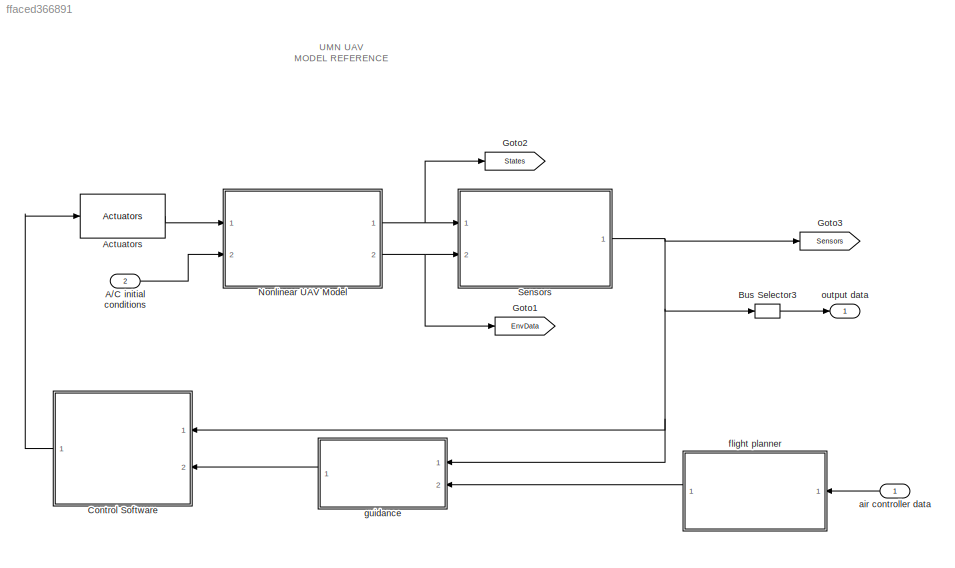
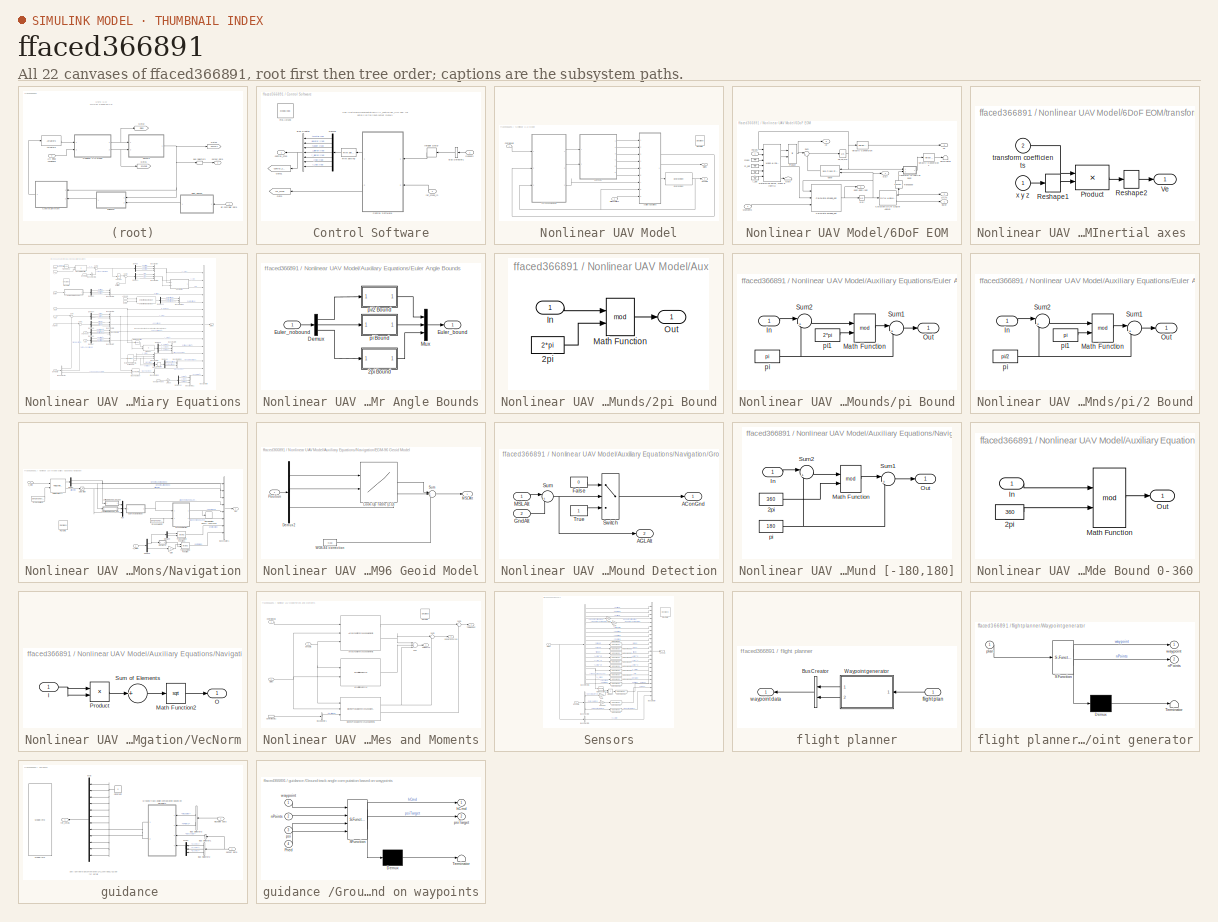
[diagram: thumbnail index - all 22 canvases of the model, root first then tree order]
MODEL slx_ffaced366891
KIND model
BLOCK [Inport] A//C initial conditions
  IconDisplay = Port number
  Port = 2
BLOCK [Reference] Actuators  REF=Actuator_Lib/Actuators
  Ports = [1, 1]
  SourceBlock = Actuator_Lib/Actuators
  SourceType = SubSystem
BLOCK [BusSelector] Bus Selector3
  OutputAsBus = on
  OutputSignals = Geodetic Latitude [rad],Geodetic Longitude [rad],Altitude [m],h [m],X_e [m]
  Ports = [1, 1]
BLOCK [SubSystem] Control Software
  FunctionWithSeparateData = off
  MaskHideContents = off
  MinAlgLoopOccurrences = off
  Opaque = off
  Ports = [2, 1]
  PropExecContextOutsideSubsystem = off
  RTWSystemCode = Auto
  RequestExecContextInheritance = off
BLOCK [BusCreator] Control Software/Bus Creator
  DisplayOption = bar
  Inputs = 7
  Ports = [7, 1]
BLOCK [BusSelector] Control Software/Bus Selector1
  OutputAsBus = on
  OutputSignals = phi [rad],theta [rad],psi [rad],p [rad/s],q [rad/s],r [rad/s],Ax [m/s^2],Ay [m/s^2],Az [m/s^2],h [m],V_s [m/s],alpha [rad],beta [rad],Geodetic Latitude [rad],Geodetic Longitude [rad],Altitude [m],Xdot [m/s],Ydot [m/s],Zdot [m/s]
  Ports = [1, 1]
BLOCK [ModelReference] Control Software/Control Software
  CopyOfModelName = baseline_alt_vel_control
  DefaultDataLogging = off
  ModelNameDialog = baseline_alt_vel_control
  ModelReferenceVersion = 1.189
  Ports = [2, 2]
  Variant = on
BLOCK [Demux] Control Software/Demux
  DisplayOption = bar
  Outputs = 7
  Ports = [1, 7]
BLOCK [Goto] Control Software/Goto
  GotoTag = ref_cmds
  TagVisibility = global
BLOCK [Goto] Control Software/Goto1
  GotoTag = control_cmds
  TagVisibility = global
BLOCK [Delay] Control Software/Integer Delay
  DelayLength = IntegerTimeDelay
  InitialCondition = repmat([TrimCondition.AttitudeIni;TrimCondition.RatesIni;TrimCondition.AccelsIni;OperatingPoint.op_report.Outputs(4).y;TrimCondition.WindAxesIni;TrimCondition.LLIni;0; zeros(3,1)],[1,IntegerTimeDelay])
  InputPortMap = u0
  InputProcessing = Inherited
  Ports = [1, 1]
BLOCK [Reference] Control Software/README  REF=simulink/Model-Wide
Utilities/DocBlock
  DocumentType = Text
  Ports = []
  SourceBlock = simulink/Model-Wide\nUtilities/DocBlock
  SourceType = DocBlock
  UserDataPersistent = on
BLOCK [Inport] Control Software/Sensors
  IconDisplay = Port number
BLOCK [Reference] Control Software/Trim setting   REF=Actuator_Lib/Trim setting 
  Ports = [1, 1]
  SourceBlock = Actuator_Lib/Trim setting
  SourceType = SubSystem
BLOCK [Outport] Control Software/control_cmd
  IconDisplay = Port number
BLOCK [Inport] Control Software/ref_cmds_in
  IconDisplay = Port number
  Port = 2
BLOCK [Goto] Goto1
  GotoTag = EnvData
  TagVisibility = global
BLOCK [Goto] Goto2
  GotoTag = States
  TagVisibility = global
BLOCK [Goto] Goto3
  GotoTag = Sensors
  TagVisibility = global
BLOCK [SubSystem] Nonlinear UAV Model
  AncestorBlock = NonlinearModel_Lib/Nonlinear UAV Model
  FunctionWithSeparateData = off
  MaskHideContents = off
  MinAlgLoopOccurrences = off
  Opaque = off
  Ports = [2, 2]
  PropExecContextOutsideSubsystem = off
  RTWSystemCode = Auto
  RequestExecContextInheritance = off
BLOCK [SubSystem] Nonlinear UAV Model/6DoF EOM
  FunctionWithSeparateData = off
  MaskHideContents = off
  MinAlgLoopOccurrences = off
  Opaque = off
  Ports = [2, 6]
  PropExecContextOutsideSubsystem = off
  RTWSystemCode = Auto
  RequestExecContextInheritance = off
BLOCK [Outport] Nonlinear UAV Model/6DoF EOM/Ab
  IconDisplay = Port number
  Port = 6
BLOCK [Reference] Nonlinear UAV Model/6DoF EOM/Calculate DCM & Euler Angles  REF=aerolib6dofsys/DCM & Euler Angles (Euler)
  FunctionWithSeparateData = off
  GeneratePreprocessorConditionals = off
  Ports = [1, 2]
  ShowPortLabels = FromPortIcon
  SourceBlock = aerolib6dofsys/DCM & Euler Angles (Euler)
  SourceType = DCM & Euler Angles (Euler)
  SystemSampleTime = -1
BLOCK [Reference] Nonlinear UAV Model/6DoF EOM/Calculate omega_dot  REF=aerolib6dofsys/Calculate omega_dot
  Ports = [3, 1]
  SourceBlock = aerolib6dofsys/Calculate omega_dot
  SourceType = SubSystem
BLOCK [Outport] Nonlinear UAV Model/6DoF EOM/DCM
  IconDisplay = Port number
  Port = 2
BLOCK [Reference] Nonlinear UAV Model/6DoF EOM/Determine Force, Mass & Inertia  REF=aerolib6dofsys/Mass & Inertia (fixed)
  FunctionWithSeparateData = off
  GeneratePreprocessorConditionals = off
  Ports = [6, 4]
  ShowPortLabels = FromPortIcon
  SourceBlock = aerolib6dofsys/Mass & Inertia (fixed)
  SourceType = Mass & Inertia (fixed)
  SystemSampleTime = -1
BLOCK [Outport] Nonlinear UAV Model/6DoF EOM/Euler
  IconDisplay = Port number
BLOCK [Inport] Nonlinear UAV Model/6DoF EOM/Forces
  IconDisplay = Port number
BLOCK [Ground] Nonlinear UAV Model/6DoF EOM/I
BLOCK [Ground] Nonlinear UAV Model/6DoF EOM/I_dot
BLOCK [Inport] Nonlinear UAV Model/6DoF EOM/Moments
  IconDisplay = Port number
  Port = 2
BLOCK [Terminator] Nonlinear UAV Model/6DoF EOM/Out9
BLOCK [Product] Nonlinear UAV Model/6DoF EOM/Product
  InputSameDT = off
  Inputs = */
  Ports = [2, 1]
  RndMeth = Floor
BLOCK [Sum] Nonlinear UAV Model/6DoF EOM/Sum
  IconShape = round
  InputSameDT = off
  Inputs = |++
  OutDataTypeStr = Inherit: Inherit via internal rule
  Ports = [2, 1]
BLOCK [Terminator] Nonlinear UAV Model/6DoF EOM/Terminator
BLOCK [Math] Nonlinear UAV Model/6DoF EOM/Transpose
  Operator = transpose
  Ports = [1, 1]
BLOCK [Outport] Nonlinear UAV Model/6DoF EOM/Vb
  IconDisplay = Port number
  Port = 3
BLOCK [Reference] Nonlinear UAV Model/6DoF EOM/Vbxw  REF=aerolibutil/3x3 Cross Product
  Ports = [2, 1]
  SourceBlock = aerolibutil/3x3 Cross Product
  SourceType = CrossProduct
BLOCK [Reference] Nonlinear UAV Model/6DoF EOM/Velocity Conversion  REF=aerolibconvert2/Velocity Conversion
  IU = m/s
  OU = m/s
  Ports = [1, 1]
  SourceBlock = aerolibconvert2/Velocity Conversion
  SourceType = Velocity Conversion
BLOCK [Reference] Nonlinear UAV Model/6DoF EOM/Velocity Conversion1  REF=aerolibconvert2/Velocity Conversion
  IU = m/s
  OU = m/s
  Ports = [1, 1]
  SourceBlock = aerolibconvert2/Velocity Conversion
  SourceType = Velocity Conversion
BLOCK [Ground] Nonlinear UAV Model/6DoF EOM/m_dot
BLOCK [Ground] Nonlinear UAV Model/6DoF EOM/mass
BLOCK [Outport] Nonlinear UAV Model/6DoF EOM/p,q,r
  IconDisplay = Port number
  Port = 4
BLOCK [Integrator] Nonlinear UAV Model/6DoF EOM/p,q,r 
  InitialCondition = pm_0
  Ports = [1, 1]
BLOCK [Outport] Nonlinear UAV Model/6DoF EOM/pdot,qdot,rdot
  IconDisplay = Port number
  Port = 5
BLOCK [SubSystem] Nonlinear UAV Model/6DoF EOM/transform to Inertial axes 
  FunctionWithSeparateData = off
  MaskHideContents = off
  MinAlgLoopOccurrences = off
  Opaque = off
  Ports = [2, 1]
  PropExecContextOutsideSubsystem = off
  RTWSystemCode = Auto
  RequestExecContextInheritance = off
  ShowPortLabels = none
BLOCK [Product] Nonlinear UAV Model/6DoF EOM/transform to Inertial axes /Product
  Multiplication = Matrix(*)
  Ports = [2, 1]
  RndMeth = Floor
BLOCK [Reshape] Nonlinear UAV Model/6DoF EOM/transform to Inertial axes /Reshape1
  OutputDimensionality = Column vector (2-D)
  Ports = [1, 1]
BLOCK [Reshape] Nonlinear UAV Model/6DoF EOM/transform to Inertial axes /Reshape2
  Ports = [1, 1]
BLOCK [Outport] Nonlinear UAV Model/6DoF EOM/transform to Inertial axes /Ve
  IconDisplay = Port number
BLOCK [Inport] Nonlinear UAV Model/6DoF EOM/transform to Inertial axes /transform coefficients
  IconDisplay = Port number
  Port = 2
BLOCK [Inport] Nonlinear UAV Model/6DoF EOM/transform to Inertial axes /x y z
  IconDisplay = Port number
BLOCK [Integrator] Nonlinear UAV Model/6DoF EOM/ub,vb,wb
  InitialCondition = convvel(Vm_0,'m/s','m/s')
  Ports = [1, 1]
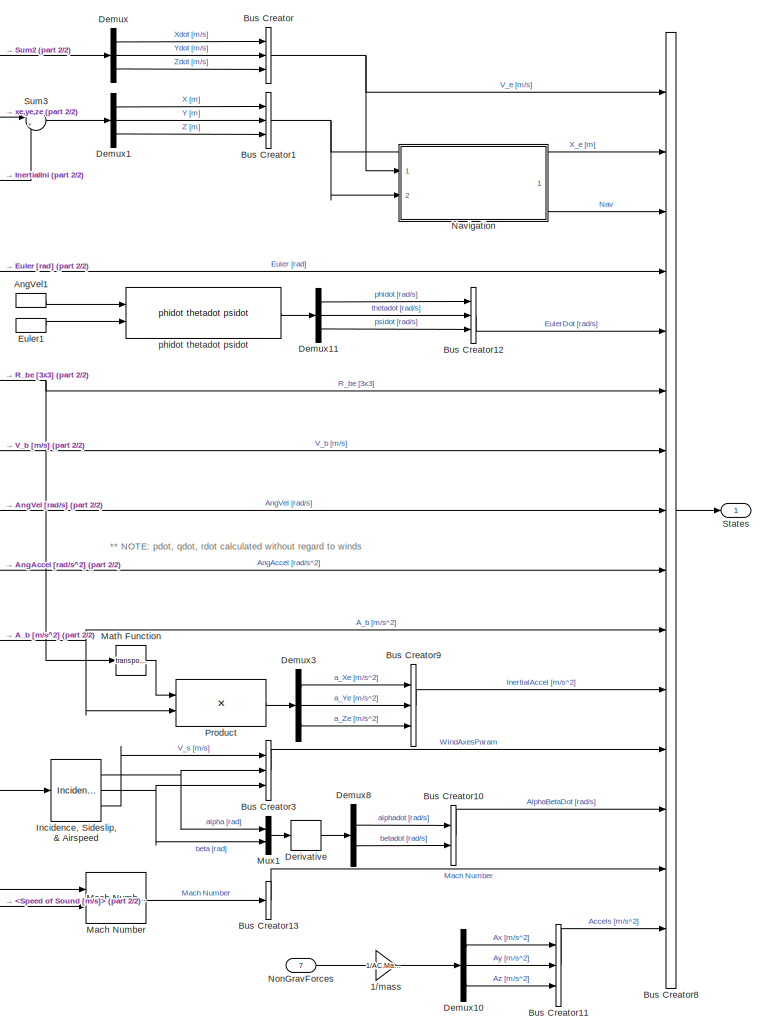
[diagram: Nonlinear UAV Model/Auxiliary Equations - part 1/2, right side, full height]
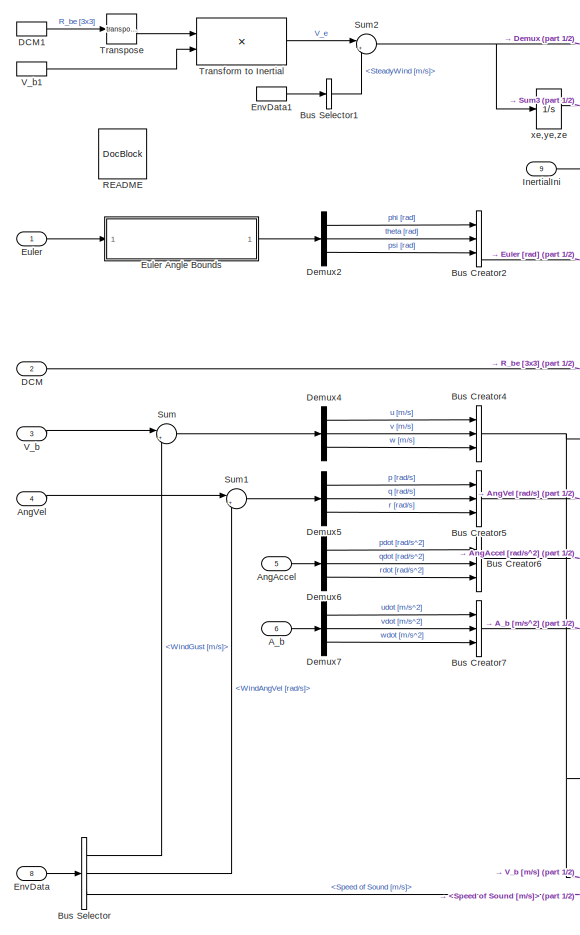
[diagram: Nonlinear UAV Model/Auxiliary Equations - part 2/2, left side, full height]
BLOCK [SubSystem] Nonlinear UAV Model/Auxiliary Equations
  AncestorBlock = AuxEq_Lib/Auxiliary Equations
  FunctionWithSeparateData = off
  MaskHideContents = off
  MinAlgLoopOccurrences = off
  Opaque = off
  Ports = [9, 1]
  PropExecContextOutsideSubsystem = off
  RTWSystemCode = Auto
  RequestExecContextInheritance = off
BLOCK [Gain] Nonlinear UAV Model/Auxiliary Equations/1//mass
  Gain = 1/AC.Mass
  OutDataTypeStr = Inherit: Inherit via internal rule
  ParamDataTypeStr = Inherit: Inherit via internal rule
  SaturateOnIntegerOverflow = off
BLOCK [Inport] Nonlinear UAV Model/Auxiliary Equations/A_b
  IconDisplay = Port number
  Port = 6
BLOCK [Inport] Nonlinear UAV Model/Auxiliary Equations/AngAccel
  IconDisplay = Port number
  Port = 5
BLOCK [Inport] Nonlinear UAV Model/Auxiliary Equations/AngVel
  IconDisplay = Port number
  Port = 4
BLOCK [InportShadow] Nonlinear UAV Model/Auxiliary Equations/AngVel1
  IconDisplay = Port number
  LatchByDelayingOutsideSignal = off
  LatchInputForFeedbackSignals = off
  Port = 4
BLOCK [BusCreator] Nonlinear UAV Model/Auxiliary Equations/Bus Creator
  DisplayOption = bar
  Inputs = 3
  Ports = [3, 1]
BLOCK [BusCreator] Nonlinear UAV Model/Auxiliary Equations/Bus Creator1
  DisplayOption = bar
  Inputs = 3
  Ports = [3, 1]
BLOCK [BusCreator] Nonlinear UAV Model/Auxiliary Equations/Bus Creator10
  DisplayOption = bar
  Inputs = 2
  Ports = [2, 1]
BLOCK [BusCreator] Nonlinear UAV Model/Auxiliary Equations/Bus Creator11
  DisplayOption = bar
  Inputs = 3
  Ports = [3, 1]
BLOCK [BusCreator] Nonlinear UAV Model/Auxiliary Equations/Bus Creator12
  DisplayOption = bar
  Inputs = 3
  Ports = [3, 1]
BLOCK [BusCreator] Nonlinear UAV Model/Auxiliary Equations/Bus Creator13
  DisplayOption = bar
  Inputs = 1
  Ports = [1, 1]
BLOCK [BusCreator] Nonlinear UAV Model/Auxiliary Equations/Bus Creator2
  DisplayOption = bar
  Inputs = 3
  Ports = [3, 1]
BLOCK [BusCreator] Nonlinear UAV Model/Auxiliary Equations/Bus Creator3
  DisplayOption = bar
  Inputs = 3
  Ports = [3, 1]
BLOCK [BusCreator] Nonlinear UAV Model/Auxiliary Equations/Bus Creator4
  DisplayOption = bar
  Inputs = 3
  Ports = [3, 1]
BLOCK [BusCreator] Nonlinear UAV Model/Auxiliary Equations/Bus Creator5
  DisplayOption = bar
  Inputs = 3
  Ports = [3, 1]
BLOCK [BusCreator] Nonlinear UAV Model/Auxiliary Equations/Bus Creator6
  DisplayOption = bar
  Inputs = 3
  Ports = [3, 1]
BLOCK [BusCreator] Nonlinear UAV Model/Auxiliary Equations/Bus Creator7
  DisplayOption = bar
  Inputs = 3
  Ports = [3, 1]
BLOCK [BusCreator] Nonlinear UAV Model/Auxiliary Equations/Bus Creator8
  DisplayOption = bar
  Inputs = 15
  Ports = [15, 1]
BLOCK [BusCreator] Nonlinear UAV Model/Auxiliary Equations/Bus Creator9
  DisplayOption = bar
  Inputs = 3
  Ports = [3, 1]
BLOCK [BusSelector] Nonlinear UAV Model/Auxiliary Equations/Bus Selector
  OutputSignals = WindGust [m/s],WindAngVel [rad/s],Speed of Sound [m/s]
  Ports = [1, 3]
BLOCK [BusSelector] Nonlinear UAV Model/Auxiliary Equations/Bus Selector1
  OutputSignals = SteadyWind [m/s]
  Ports = [1, 1]
BLOCK [Inport] Nonlinear UAV Model/Auxiliary Equations/DCM
  IconDisplay = Port number
  Port = 2
BLOCK [InportShadow] Nonlinear UAV Model/Auxiliary Equations/DCM1
  IconDisplay = Port number
  LatchByDelayingOutsideSignal = off
  LatchInputForFeedbackSignals = off
  Port = 2
BLOCK [Demux] Nonlinear UAV Model/Auxiliary Equations/Demux
  DisplayOption = bar
  Outputs = 3
  Ports = [1, 3]
BLOCK [Demux] Nonlinear UAV Model/Auxiliary Equations/Demux1
  DisplayOption = bar
  Outputs = 3
  Ports = [1, 3]
BLOCK [Demux] Nonlinear UAV Model/Auxiliary Equations/Demux10
  DisplayOption = bar
  Outputs = 3
  Ports = [1, 3]
BLOCK [Demux] Nonlinear UAV Model/Auxiliary Equations/Demux11
  DisplayOption = bar
  Outputs = 3
  Ports = [1, 3]
BLOCK [Demux] Nonlinear UAV Model/Auxiliary Equations/Demux2
  DisplayOption = bar
  Outputs = 3
  Ports = [1, 3]
BLOCK [Demux] Nonlinear UAV Model/Auxiliary Equations/Demux3
  DisplayOption = bar
  Outputs = 3
  Ports = [1, 3]
BLOCK [Demux] Nonlinear UAV Model/Auxiliary Equations/Demux4
  DisplayOption = bar
  Outputs = 3
  Ports = [1, 3]
BLOCK [Demux] Nonlinear UAV Model/Auxiliary Equations/Demux5
  DisplayOption = bar
  Outputs = 3
  Ports = [1, 3]
BLOCK [Demux] Nonlinear UAV Model/Auxiliary Equations/Demux6
  DisplayOption = bar
  Outputs = 3
  Ports = [1, 3]
BLOCK [Demux] Nonlinear UAV Model/Auxiliary Equations/Demux7
  DisplayOption = bar
  Outputs = 3
  Ports = [1, 3]
BLOCK [Demux] Nonlinear UAV Model/Auxiliary Equations/Demux8
  Outputs = 2
  Ports = [1, 2]
BLOCK [Derivative] Nonlinear UAV Model/Auxiliary Equations/Derivative
BLOCK [Inport] Nonlinear UAV Model/Auxiliary Equations/EnvData
  IconDisplay = Port number
  Port = 8
BLOCK [InportShadow] Nonlinear UAV Model/Auxiliary Equations/EnvData1
  IconDisplay = Port number
  LatchByDelayingOutsideSignal = off
  LatchInputForFeedbackSignals = off
  Port = 8
BLOCK [Inport] Nonlinear UAV Model/Auxiliary Equations/Euler
  IconDisplay = Port number
BLOCK [SubSystem] Nonlinear UAV Model/Auxiliary Equations/Euler Angle Bounds
  FunctionWithSeparateData = off
  MaskHideContents = off
  MinAlgLoopOccurrences = off
  Opaque = off
  Ports = [1, 1]
  PropExecContextOutsideSubsystem = off
  RTWSystemCode = Auto
  RequestExecContextInheritance = off
BLOCK [SubSystem] Nonlinear UAV Model/Auxiliary Equations/Euler Angle Bounds/2pi Bound
  FunctionWithSeparateData = off
  MaskHideContents = off
  MinAlgLoopOccurrences = off
  Opaque = off
  Ports = [1, 1]
  PropExecContextOutsideSubsystem = off
  RTWSystemCode = Auto
  RequestExecContextInheritance = off
BLOCK [Constant] Nonlinear UAV Model/Auxiliary Equations/Euler Angle Bounds/2pi Bound/2pi
  Value = 2*pi
BLOCK [Inport] Nonlinear UAV Model/Auxiliary Equations/Euler Angle Bounds/2pi Bound/In
  IconDisplay = Port number
BLOCK [Math] Nonlinear UAV Model/Auxiliary Equations/Euler Angle Bounds/2pi Bound/Math Function
  Operator = mod
  Ports = [2, 1]
BLOCK [Outport] Nonlinear UAV Model/Auxiliary Equations/Euler Angle Bounds/2pi Bound/Out
  IconDisplay = Port number
BLOCK [Demux] Nonlinear UAV Model/Auxiliary Equations/Euler Angle Bounds/Demux
  DisplayOption = bar
  Outputs = 3
  Ports = [1, 3]
BLOCK [Outport] Nonlinear UAV Model/Auxiliary Equations/Euler Angle Bounds/Euler_bound
  IconDisplay = Port number
BLOCK [Inport] Nonlinear UAV Model/Auxiliary Equations/Euler Angle Bounds/Euler_nobound
  IconDisplay = Port number
BLOCK [Mux] Nonlinear UAV Model/Auxiliary Equations/Euler Angle Bounds/Mux
  DisplayOption = bar
  Inputs = 3
  Ports = [3, 1]
BLOCK [SubSystem] Nonlinear UAV Model/Auxiliary Equations/Euler Angle Bounds/pi Bound
  FunctionWithSeparateData = off
  MaskHideContents = off
  MinAlgLoopOccurrences = off
  Opaque = off
  Ports = [1, 1]
  PropExecContextOutsideSubsystem = off
  RTWSystemCode = Auto
  RequestExecContextInheritance = off
BLOCK [Inport] Nonlinear UAV Model/Auxiliary Equations/Euler Angle Bounds/pi Bound/In
  IconDisplay = Port number
BLOCK [Math] Nonlinear UAV Model/Auxiliary Equations/Euler Angle Bounds/pi Bound/Math Function
  Operator = mod
  Ports = [2, 1]
BLOCK [Outport] Nonlinear UAV Model/Auxiliary Equations/Euler Angle Bounds/pi Bound/Out
  IconDisplay = Port number
BLOCK [Sum] Nonlinear UAV Model/Auxiliary Equations/Euler Angle Bounds/pi Bound/Sum1
  IconShape = round
  Inputs = |+-
  Ports = [2, 1]
BLOCK [Sum] Nonlinear UAV Model/Auxiliary Equations/Euler Angle Bounds/pi Bound/Sum2
  IconShape = round
  Inputs = |++
  Ports = [2, 1]
BLOCK [Constant] Nonlinear UAV Model/Auxiliary Equations/Euler Angle Bounds/pi Bound/pi
  Value = pi
BLOCK [Constant] Nonlinear UAV Model/Auxiliary Equations/Euler Angle Bounds/pi Bound/pi1
  Value = 2*pi
BLOCK [SubSystem] Nonlinear UAV Model/Auxiliary Equations/Euler Angle Bounds/pi//2 Bound
  FunctionWithSeparateData = off
  MaskHideContents = off
  MinAlgLoopOccurrences = off
  Opaque = off
  Ports = [1, 1]
  PropExecContextOutsideSubsystem = off
  RTWSystemCode = Auto
  RequestExecContextInheritance = off
BLOCK [Inport] Nonlinear UAV Model/Auxiliary Equations/Euler Angle Bounds/pi//2 Bound/In
  IconDisplay = Port number
BLOCK [Math] Nonlinear UAV Model/Auxiliary Equations/Euler Angle Bounds/pi//2 Bound/Math Function
  Operator = mod
  Ports = [2, 1]
BLOCK [Outport] Nonlinear UAV Model/Auxiliary Equations/Euler Angle Bounds/pi//2 Bound/Out
  IconDisplay = Port number
BLOCK [Sum] Nonlinear UAV Model/Auxiliary Equations/Euler Angle Bounds/pi//2 Bound/Sum1
  IconShape = round
  Inputs = |+-
  Ports = [2, 1]
BLOCK [Sum] Nonlinear UAV Model/Auxiliary Equations/Euler Angle Bounds/pi//2 Bound/Sum2
  IconShape = round
  Inputs = |++
  Ports = [2, 1]
BLOCK [Constant] Nonlinear UAV Model/Auxiliary Equations/Euler Angle Bounds/pi//2 Bound/pi
  Value = pi/2
BLOCK [Constant] Nonlinear UAV Model/Auxiliary Equations/Euler Angle Bounds/pi//2 Bound/pi1
  Value = pi
BLOCK [InportShadow] Nonlinear UAV Model/Auxiliary Equations/Euler1
  IconDisplay = Port number
  LatchByDelayingOutsideSignal = off
  LatchInputForFeedbackSignals = off
BLOCK [Reference] Nonlinear UAV Model/Auxiliary Equations/Incidence, Sideslip, & Airspeed  REF=aerolibasang/Incidence, Sideslip,
& Airspeed
  Ports = [1, 3]
  SourceBlock = aerolibasang/Incidence, Sideslip,\n& Airspeed
  SourceType = Incidence,Sideslip,&Airspeed
BLOCK [Inport] Nonlinear UAV Model/Auxiliary Equations/InertialIni
  IconDisplay = Port number
  Port = 9
BLOCK [Reference] Nonlinear UAV Model/Auxiliary Equations/Mach Number  REF=aerolibasang/Mach Number
  Ports = [2, 1]
  SourceBlock = aerolibasang/Mach Number
  SourceType = Mach Number
BLOCK [Math] Nonlinear UAV Model/Auxiliary Equations/Math Function
  Operator = transpose
  Ports = [1, 1]
BLOCK [Mux] Nonlinear UAV Model/Auxiliary Equations/Mux1
  DisplayOption = bar
  Inputs = 2
  Ports = [2, 1]
BLOCK [SubSystem] Nonlinear UAV Model/Auxiliary Equations/Navigation
  AncestorBlock = Navigation_Lib/Navigation
  Description = This model produces the followng navigation data for the UAV flight:\n                                                                    \n* Geodetic Latitude                                                 \n* Geodetic Longitude                                                \n* Geodetic Altitude                                                 \n* Altitude above Mean Sea Level                        ...<+49ch>
  FunctionWithSeparateData = off
  MaskHideContents = off
  MinAlgLoopOccurrences = off
  Opaque = off
  Ports = [2, 1]
  PropExecContextOutsideSubsystem = off
  RTWSystemCode = Auto
  RequestExecContextInheritance = off
BLOCK [BusCreator] Nonlinear UAV Model/Auxiliary Equations/Navigation/Bus Creator1
  DisplayOption = bar
  Inputs = 8
  Ports = [8, 1]
BLOCK [Demux] Nonlinear UAV Model/Auxiliary Equations/Navigation/Demux
  DisplayOption = bar
  Outputs = 2
  Ports = [1, 2]
BLOCK [Demux] Nonlinear UAV Model/Auxiliary Equations/Navigation/Demux8
  DisplayOption = bar
  Outputs = [2 1]
  Ports = [1, 2]
BLOCK [Demux] Nonlinear UAV Model/Auxiliary Equations/Navigation/Demux9
  DisplayOption = bar
  Outputs = 2
  Ports = [1, 2]
BLOCK [SubSystem] Nonlinear UAV Model/Auxiliary Equations/Navigation/EGM-96 Geoid Model
  FunctionWithSeparateData = off
  MaskHideContents = off
  MinAlgLoopOccurrences = off
  Opaque = off
  Ports = [1, 1]
  PropExecContextOutsideSubsystem = off
  RTWSystemCode = Auto
  RequestExecContextInheritance = off
BLOCK [Demux] Nonlinear UAV Model/Auxiliary Equations/Navigation/EGM-96 Geoid Model/Demux2
  Outputs = 3
  Ports = [1, 3]
BLOCK [Lookup2D] Nonlinear UAV Model/Auxiliary Equations/Navigation/EGM-96 Geoid Model/Look-Up Table (2-D)
  ColumnIndex = Lon
  RowIndex = Lat
  Table = Alterr'
BLOCK [Outport] Nonlinear UAV Model/Auxiliary Equations/Navigation/EGM-96 Geoid Model/MSLAlt
  IconDisplay = Port number
BLOCK [Inport] Nonlinear UAV Model/Auxiliary Equations/Navigation/EGM-96 Geoid Model/Position
  IconDisplay = Port number
BLOCK [Sum] Nonlinear UAV Model/Auxiliary Equations/Navigation/EGM-96 Geoid Model/Sum
  IconShape = round
  InputSameDT = off
  Inputs = |+++
  OutDataTypeStr = Inherit: Inherit via internal rule
  Ports = [3, 1]
  SaturateOnIntegerOverflow = off
BLOCK [Constant] Nonlinear UAV Model/Auxiliary Equations/Navigation/EGM-96 Geoid Model/WGS-84 correction
  Value = -0.53
BLOCK [Reference] Nonlinear UAV Model/Auxiliary Equations/Navigation/Flat Earth to LLA  REF=aerolibtransform2/Flat Earth to LLA
  F = 1/298.257223563
  LL0 = TrimCondition.LLIni
  Ports = [2, 2]
  R = 6378137
  SourceBlock = aerolibtransform2/Flat Earth to LLA
  SourceType = Flat Earth to LLA
  psi = 0
  ptype = Earth (WGS84)
  units = Metric (MKS)
BLOCK [Gain] Nonlinear UAV Model/Auxiliary Equations/Navigation/Gain
  Gain = -1
  OutDataTypeStr = Inherit: Inherit via internal rule
  ParamDataTypeStr = Inherit: Inherit via internal rule
  SaturateOnIntegerOverflow = off
BLOCK [SubSystem] Nonlinear UAV Model/Auxiliary Equations/Navigation/Ground Detection
  FunctionWithSeparateData = off
  MaskHideContents = off
  MinAlgLoopOccurrences = off
  Opaque = off
  Ports = [2, 2]
  PropExecContextOutsideSubsystem = off
  RTWSystemCode = Auto
  RequestExecContextInheritance = off
BLOCK [Outport] Nonlinear UAV Model/Auxiliary Equations/Navigation/Ground Detection/AConGnd
  IconDisplay = Port number
BLOCK [Outport] Nonlinear UAV Model/Auxiliary Equations/Navigation/Ground Detection/AGLAlt
  IconDisplay = Port number
  Port = 2
BLOCK [Constant] Nonlinear UAV Model/Auxiliary Equations/Navigation/Ground Detection/False
  Value = 0
BLOCK [Inport] Nonlinear UAV Model/Auxiliary Equations/Navigation/Ground Detection/GndAlt
  IconDisplay = Port number
  Port = 2
BLOCK [Inport] Nonlinear UAV Model/Auxiliary Equations/Navigation/Ground Detection/MSLAlt
  IconDisplay = Port number
BLOCK [Sum] Nonlinear UAV Model/Auxiliary Equations/Navigation/Ground Detection/Sum
  IconShape = round
  Inputs = |+-
  Ports = [2, 1]
BLOCK [Switch] Nonlinear UAV Model/Auxiliary Equations/Navigation/Ground Detection/Switch
BLOCK [Constant] Nonlinear UAV Model/Auxiliary Equations/Navigation/Ground Detection/True
BLOCK [Constant] Nonlinear UAV Model/Auxiliary Equations/Navigation/Ground Height
  Value = Env.GroundAlt
BLOCK [Constant] Nonlinear UAV Model/Auxiliary Equations/Navigation/Ground Height1
  Value = Env.GroundAlt
BLOCK [SubSystem] Nonlinear UAV Model/Auxiliary Equations/Navigation/Latitude Bound [-180,180]
  FunctionWithSeparateData = off
  MaskHideContents = off
  MinAlgLoopOccurrences = off
  Opaque = off
  Ports = [1, 1]
  PropExecContextOutsideSubsystem = off
  RTWSystemCode = Auto
  RequestExecContextInheritance = off
BLOCK [Constant] Nonlinear UAV Model/Auxiliary Equations/Navigation/Latitude Bound [-180,180]/2pi
  Value = 360
BLOCK [Inport] Nonlinear UAV Model/Auxiliary Equations/Navigation/Latitude Bound [-180,180]/In
  IconDisplay = Port number
BLOCK [Math] Nonlinear UAV Model/Auxiliary Equations/Navigation/Latitude Bound [-180,180]/Math Function
  Operator = mod
  Ports = [2, 1]
BLOCK [Outport] Nonlinear UAV Model/Auxiliary Equations/Navigation/Latitude Bound [-180,180]/Out
  IconDisplay = Port number
BLOCK [Sum] Nonlinear UAV Model/Auxiliary Equations/Navigation/Latitude Bound [-180,180]/Sum1
  IconShape = round
  Inputs = |+-
  Ports = [2, 1]
BLOCK [Sum] Nonlinear UAV Model/Auxiliary Equations/Navigation/Latitude Bound [-180,180]/Sum2
  IconShape = round
  Inputs = |++
  Ports = [2, 1]
BLOCK [Constant] Nonlinear UAV Model/Auxiliary Equations/Navigation/Latitude Bound [-180,180]/pi
  Value = 180
BLOCK [SubSystem] Nonlinear UAV Model/Auxiliary Equations/Navigation/Longitude Bound 0-360
  FunctionWithSeparateData = off
  MaskHideContents = off
  MinAlgLoopOccurrences = off
  Opaque = off
  Ports = [1, 1]
  PropExecContextOutsideSubsystem = off
  RTWSystemCode = Auto
  RequestExecContextInheritance = off
BLOCK [Constant] Nonlinear UAV Model/Auxiliary Equations/Navigation/Longitude Bound 0-360/2pi
  Value = 360
BLOCK [Inport] Nonlinear UAV Model/Auxiliary Equations/Navigation/Longitude Bound 0-360/In
  IconDisplay = Port number
BLOCK [Math] Nonlinear UAV Model/Auxiliary Equations/Navigation/Longitude Bound 0-360/Math Function
  Operator = mod
  Ports = [2, 1]
BLOCK [Outport] Nonlinear UAV Model/Auxiliary Equations/Navigation/Longitude Bound 0-360/Out
  IconDisplay = Port number
BLOCK [Mux] Nonlinear UAV Model/Auxiliary Equations/Navigation/Mux
  DisplayOption = bar
  Inputs = 3
  Ports = [3, 1]
BLOCK [Outport] Nonlinear UAV Model/Auxiliary Equations/Navigation/Nav
  IconDisplay = Port number
BLOCK [Reference] Nonlinear UAV Model/Auxiliary Equations/Navigation/README  REF=simulink/Model-Wide
Utilities/DocBlock
  DocumentType = Text
  Ports = []
  SourceBlock = simulink/Model-Wide\nUtilities/DocBlock
  SourceType = DocBlock
  UserDataPersistent = on
BLOCK [Saturate] Nonlinear UAV Model/Auxiliary Equations/Navigation/Saturation
  InputPortMap = u0
  LowerLimit = 0
  Ports = [1, 1]
  UpperLimit = Inf
BLOCK [Stop] Nonlinear UAV Model/Auxiliary Equations/Navigation/Stop Simulation when A//C on the ground
BLOCK [Trigonometry] Nonlinear UAV Model/Auxiliary Equations/Navigation/Trigonometric Function
  Operator = atan2
  Ports = [2, 1]
BLOCK [Trigonometry] Nonlinear UAV Model/Auxiliary Equations/Navigation/Trigonometric Function1
  Operator = atan2
  Ports = [2, 1]
BLOCK [Inport] Nonlinear UAV Model/Auxiliary Equations/Navigation/V_e [m//s]
  IconDisplay = Port number
BLOCK [SubSystem] Nonlinear UAV Model/Auxiliary Equations/Navigation/VecNorm
  FunctionWithSeparateData = off
  MaskHideContents = off
  MinAlgLoopOccurrences = off
  Opaque = off
  Ports = [1, 1]
  PropExecContextOutsideSubsystem = off
  RTWSystemCode = Auto
  RequestExecContextInheritance = off
BLOCK [Inport] Nonlinear UAV Model/Auxiliary Equations/Navigation/VecNorm/I
  IconDisplay = Port number
BLOCK [Math] Nonlinear UAV Model/Auxiliary Equations/Navigation/VecNorm/Math Function2
  Operator = sqrt
  Ports = [1, 1]
BLOCK [Outport] Nonlinear UAV Model/Auxiliary Equations/Navigation/VecNorm/O
  IconDisplay = Port number
BLOCK [Product] Nonlinear UAV Model/Auxiliary Equations/Navigation/VecNorm/Product
  InputSameDT = off
  OutDataTypeStr = Inherit: Inherit via internal rule
  Ports = [2, 1]
  SaturateOnIntegerOverflow = off
BLOCK [Sum] Nonlinear UAV Model/Auxiliary Equations/Navigation/VecNorm/Sum of Elements
  InputSameDT = off
  Inputs = +
  OutDataTypeStr = Inherit: Inherit via internal rule
  Ports = [1, 1]
  SaturateOnIntegerOverflow = off
BLOCK [Inport] Nonlinear UAV Model/Auxiliary Equations/Navigation/X_e [m]
  IconDisplay = Port number
  Port = 2
BLOCK [Inport] Nonlinear UAV Model/Auxiliary Equations/NonGravForces
  IconDisplay = Port number
  Port = 7
BLOCK [Product] Nonlinear UAV Model/Auxiliary Equations/Product
  InputSameDT = off
  Multiplication = Matrix(*)
  OutDataTypeStr = Inherit: Inherit via internal rule
  Ports = [2, 1]
  SaturateOnIntegerOverflow = off
BLOCK [Reference] Nonlinear UAV Model/Auxiliary Equations/README  REF=simulink/Model-Wide
Utilities/DocBlock
  DocumentType = Text
  Ports = []
  SourceBlock = simulink/Model-Wide\nUtilities/DocBlock
  SourceType = DocBlock
  UserDataPersistent = on
BLOCK [Outport] Nonlinear UAV Model/Auxiliary Equations/States
  IconDisplay = Port number
BLOCK [Sum] Nonlinear UAV Model/Auxiliary Equations/Sum
  IconShape = round
  InputSameDT = off
  Inputs = |++
  OutDataTypeStr = Inherit: Inherit via internal rule
  Ports = [2, 1]
  SaturateOnIntegerOverflow = off
BLOCK [Sum] Nonlinear UAV Model/Auxiliary Equations/Sum1
  IconShape = round
  InputSameDT = off
  Inputs = |++
  OutDataTypeStr = Inherit: Inherit via internal rule
  Ports = [2, 1]
  SaturateOnIntegerOverflow = off
BLOCK [Sum] Nonlinear UAV Model/Auxiliary Equations/Sum2
  IconShape = round
  InputSameDT = off
  Inputs = |++
  OutDataTypeStr = Inherit: Inherit via internal rule
  Ports = [2, 1]
  SaturateOnIntegerOverflow = off
BLOCK [Sum] Nonlinear UAV Model/Auxiliary Equations/Sum3
  IconShape = round
  InputSameDT = off
  Inputs = |++
  OutDataTypeStr = Inherit: Inherit via internal rule
  Ports = [2, 1]
  SaturateOnIntegerOverflow = off
BLOCK [Product] Nonlinear UAV Model/Auxiliary Equations/Transform to Inertial
  InputSameDT = off
  Multiplication = Matrix(*)
  OutDataTypeStr = Inherit: Inherit via internal rule
  Ports = [2, 1]
  SaturateOnIntegerOverflow = off
BLOCK [Math] Nonlinear UAV Model/Auxiliary Equations/Transpose
  Operator = transpose
  Ports = [1, 1]
BLOCK [Inport] Nonlinear UAV Model/Auxiliary Equations/V_b
  IconDisplay = Port number
  Port = 3
BLOCK [InportShadow] Nonlinear UAV Model/Auxiliary Equations/V_b1
  IconDisplay = Port number
  LatchByDelayingOutsideSignal = off
  LatchInputForFeedbackSignals = off
  Port = 3
BLOCK [Reference] Nonlinear UAV Model/Auxiliary Equations/phidot thetadot psidot  REF=aerolib6dofsys/DCM & Euler Angles (Euler)/phidot
thetadot
psidot
  Ports = [2, 1]
  SourceBlock = aerolib6dofsys/DCM & Euler Angles (Euler)/phidot\nthetadot\npsidot
  SourceType = SubSystem
BLOCK [Integrator] Nonlinear UAV Model/Auxiliary Equations/xe,ye,ze
  InitialCondition = TrimCondition.InertialIni
  Ports = [1, 1]
BLOCK [Inport] Nonlinear UAV Model/Control Inputs
  IconDisplay = Port number
BLOCK [Outport] Nonlinear UAV Model/EnvData
  IconDisplay = Port number
  Port = 2
BLOCK [Reference] Nonlinear UAV Model/Environment  REF=Environment_Lib/Environment
  Ports = [1, 1]
  SourceBlock = Environment_Lib/Environment
  SourceType = SubSystem
BLOCK [SubSystem] Nonlinear UAV Model/Forces and Moments
  FunctionWithSeparateData = off
  MaskHideContents = off
  MinAlgLoopOccurrences = off
  Opaque = off
  Ports = [3, 3]
  PropExecContextOutsideSubsystem = off
  RTWSystemCode = Auto
  RequestExecContextInheritance = off
BLOCK [Reference] Nonlinear UAV Model/Forces and Moments/Aerodynamic Forces and Moments  REF=Aero_Lib/Aerodynamic Forces and Moments
  Ports = [3, 2]
  SourceBlock = Aero_Lib/Aerodynamic Forces and Moments
  aeromodel = AC.Aero.use_FASER_aero
BLOCK [BusSelector] Nonlinear UAV Model/Forces and Moments/Bus Selector1
  OutputSignals = throttle [nd]
  Ports = [1, 1]
BLOCK [Inport] Nonlinear UAV Model/Forces and Moments/Control Inputs
  IconDisplay = Port number
BLOCK [InportShadow] Nonlinear UAV Model/Forces and Moments/Control Inputs1
  IconDisplay = Port number
  LatchByDelayingOutsideSignal = off
  LatchInputForFeedbackSignals = off
BLOCK [Reference] Nonlinear UAV Model/Forces and Moments/Electric Propulsion Forces and Moments  REF=Propulsion_Lib/Electric Propulsion Forces and Moments
  Ports = [3, 2]
  SourceBlock = Propulsion_Lib/Electric Propulsion Forces and Moments
  SourceType = SubSystem
BLOCK [Inport] Nonlinear UAV Model/Forces and Moments/EnvData
  IconDisplay = Port number
  Port = 3
BLOCK [Reference] Nonlinear UAV Model/Forces and Moments/Gravitational Force   REF=Gravity_Lib/Gravitational Force 
  Ports = [2, 1]
  SourceBlock = Gravity_Lib/Gravitational Force
  SourceType = SubSystem
BLOCK [Reference] Nonlinear UAV Model/Forces and Moments/README  REF=simulink/Model-Wide
Utilities/DocBlock
  DocumentType = Text
  Ports = []
  SourceBlock = simulink/Model-Wide\nUtilities/DocBlock
  SourceType = DocBlock
  UserDataPersistent = on
BLOCK [Inport] Nonlinear UAV Model/Forces and Moments/States
  IconDisplay = Port number
  Port = 2
BLOCK [Sum] Nonlinear UAV Model/Forces and Moments/Sum
  InputSameDT = off
  Inputs = +++
  OutDataTypeStr = Inherit: Inherit via internal rule
  Ports = [3, 1]
  SaturateOnIntegerOverflow = off
BLOCK [Sum] Nonlinear UAV Model/Forces and Moments/Sum1
  IconShape = round
  InputSameDT = off
  Inputs = |++
  OutDataTypeStr = Inherit: Inherit via internal rule
  Ports = [2, 1]
  SaturateOnIntegerOverflow = off
BLOCK [Sum] Nonlinear UAV Model/Forces and Moments/Sum2
  IconShape = round
  InputSameDT = off
  Inputs = |++
  OutDataTypeStr = Inherit: Inherit via internal rule
  Ports = [2, 1]
  SaturateOnIntegerOverflow = off
BLOCK [Outport] Nonlinear UAV Model/Forces and Moments/Total Force
  IconDisplay = Port number
BLOCK [Outport] Nonlinear UAV Model/Forces and Moments/Total Moment
  IconDisplay = Port number
  Port = 2
BLOCK [Outport] Nonlinear UAV Model/Forces and Moments/nonGravForces
  IconDisplay = Port number
  Port = 3
BLOCK [Inport] Nonlinear UAV Model/Initial conditions
  IconDisplay = Port number
  Port = 2
BLOCK [Reference] Nonlinear UAV Model/README  REF=simulink/Model-Wide
Utilities/DocBlock
  DocumentType = Text
  Ports = []
  SourceBlock = simulink/Model-Wide\nUtilities/DocBlock
  SourceType = DocBlock
  UserDataPersistent = on
BLOCK [Outport] Nonlinear UAV Model/States
  IconDisplay = Port number
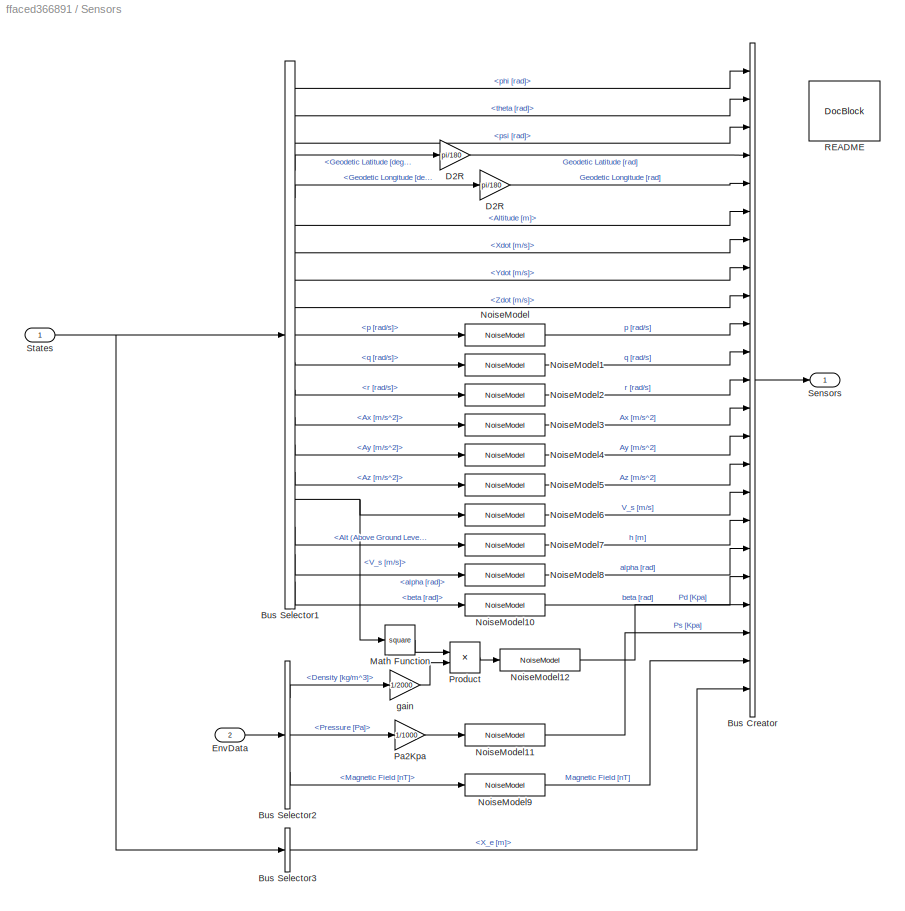
BLOCK [SubSystem] Sensors
  AncestorBlock = Sensors_Lib/Sensors
  FunctionWithSeparateData = off
  MaskHideContents = off
  MinAlgLoopOccurrences = off
  Opaque = off
  Ports = [2, 1]
  PropExecContextOutsideSubsystem = off
  RTWSystemCode = Auto
  RequestExecContextInheritance = off
BLOCK [BusCreator] Sensors/Bus Creator
  DisplayOption = bar
  Inputs = 23
  Ports = [23, 1]
BLOCK [BusSelector] Sensors/Bus Selector1
  OutputSignals = Euler [rad].phi [rad],Euler [rad].theta [rad],Euler [rad].psi [rad],Nav.Geodetic Latitude [deg],Nav.Geodetic Longitude [deg],Nav.Altitude [m],V_e [m/s].Xdot [m/s],V_e [m/s].Ydot [m/s],V_e [m/s].Zdot [m/s],AngVel [rad/s].p [rad/s],AngVel [rad/s].q [rad/s],AngVel [rad/s].r [rad/s],Accels [m/s^2].Ax [m/s^2],Accels [m/s^2].Ay [m/s^2],Accels [m/s^2].Az [m/s^2],WindAxesParam.V_s [m/s],Nav.Alt (Above Gro...<+65ch>
  Ports = [1, 19]
BLOCK [BusSelector] Sensors/Bus Selector2
  OutputSignals = Density [kg/m^3],Pressure [Pa],Magnetic Field [nT]
  Ports = [1, 3]
BLOCK [BusSelector] Sensors/Bus Selector3
  OutputSignals = X_e [m]
  Ports = [1, 1]
BLOCK [Gain] Sensors/D2R
  Gain = pi/180
  OutDataTypeStr = Inherit: Inherit via internal rule
  ParamDataTypeStr = Inherit: Inherit via internal rule
  SampleTime = SampleTime
  SaturateOnIntegerOverflow = off
BLOCK [Gain] Sensors/D2R 
  Gain = pi/180
  OutDataTypeStr = Inherit: Inherit via internal rule
  ParamDataTypeStr = Inherit: Inherit via internal rule
  SampleTime = SampleTime
  SaturateOnIntegerOverflow = off
BLOCK [Inport] Sensors/EnvData
  IconDisplay = Port number
  Port = 2
BLOCK [Math] Sensors/Math Function
  Operator = square
  Ports = [1, 1]
BLOCK [Reference] Sensors/NoiseModel  REF=Sensors_Lib/NoiseModel
  Ports = [1, 1]
  SourceBlock = Sensors_Lib/NoiseModel
  SourceType = Sensor Model
  bias = AC.Sensors.IMU.p_bias
  noise_on = AC.Sensors.NoiseOn
  scf = AC.Sensors.IMU.p_scf
  seed = 878230
  sigma = AC.Sensors.IMU.p_noise
  timestep = SampleTime
BLOCK [Reference] Sensors/NoiseModel1  REF=Sensors_Lib/NoiseModel
  Ports = [1, 1]
  SourceBlock = Sensors_Lib/NoiseModel
  SourceType = Sensor Model
  bias = AC.Sensors.IMU.q_bias
  noise_on = AC.Sensors.NoiseOn
  scf = AC.Sensors.IMU.q_scf
  seed = 878231
  sigma = AC.Sensors.IMU.q_noise
  timestep = SampleTime
BLOCK [Reference] Sensors/NoiseModel10  REF=Sensors_Lib/NoiseModel
  Ports = [1, 1]
  SourceBlock = Sensors_Lib/NoiseModel
  SourceType = Sensor Model
  bias = AC.Sensors.AirData.beta_bias
  noise_on = AC.Sensors.NoiseOn
  scf = AC.Sensors.AirData.beta_scf
  seed = 87828
  sigma = AC.Sensors.AirData.beta_noise
  timestep = SampleTime
BLOCK [Reference] Sensors/NoiseModel11  REF=Sensors_Lib/NoiseModel
  Ports = [1, 1]
  SourceBlock = Sensors_Lib/NoiseModel
  SourceType = Sensor Model
  bias = AC.Sensors.AirData.Ps_bias
  noise_on = AC.Sensors.NoiseOn
  scf = AC.Sensors.AirData.Ps_scf
  seed = 8782378
  sigma = AC.Sensors.AirData.Ps_noise
  timestep = SampleTime
BLOCK [Reference] Sensors/NoiseModel12  REF=Sensors_Lib/NoiseModel
  Ports = [1, 1]
  SourceBlock = Sensors_Lib/NoiseModel
  SourceType = Sensor Model
  bias = AC.Sensors.AirData.Pd_bias
  noise_on = AC.Sensors.NoiseOn
  scf = AC.Sensors.AirData.Pd_scf
  seed = 87823
  sigma = AC.Sensors.AirData.Pd_noise
  timestep = SampleTime
BLOCK [Reference] Sensors/NoiseModel2  REF=Sensors_Lib/NoiseModel
  Ports = [1, 1]
  SourceBlock = Sensors_Lib/NoiseModel
  SourceType = Sensor Model
  bias = AC.Sensors.IMU.r_bias
  noise_on = AC.Sensors.NoiseOn
  scf = AC.Sensors.IMU.r_scf
  seed = 878232
  sigma = AC.Sensors.IMU.r_noise
  timestep = SampleTime
BLOCK [Reference] Sensors/NoiseModel3  REF=Sensors_Lib/NoiseModel
  Ports = [1, 1]
  SourceBlock = Sensors_Lib/NoiseModel
  SourceType = Sensor Model
  bias = AC.Sensors.IMU.ax_bias
  noise_on = AC.Sensors.NoiseOn
  scf = AC.Sensors.IMU.ax_scf
  seed = 878233
  sigma = AC.Sensors.IMU.ax_noise
  timestep = SampleTime
BLOCK [Reference] Sensors/NoiseModel4  REF=Sensors_Lib/NoiseModel
  Ports = [1, 1]
  SourceBlock = Sensors_Lib/NoiseModel
  SourceType = Sensor Model
  bias = AC.Sensors.IMU.ay_bias
  noise_on = AC.Sensors.NoiseOn
  scf = AC.Sensors.IMU.ay_scf
  seed = 878234
  sigma = AC.Sensors.IMU.ay_noise
  timestep = SampleTime
BLOCK [Reference] Sensors/NoiseModel5  REF=Sensors_Lib/NoiseModel
  Ports = [1, 1]
  SourceBlock = Sensors_Lib/NoiseModel
  SourceType = Sensor Model
  bias = AC.Sensors.IMU.az_bias
  noise_on = AC.Sensors.NoiseOn
  scf = AC.Sensors.IMU.az_scf
  seed = 878235
  sigma = AC.Sensors.IMU.az_noise
  timestep = SampleTime
BLOCK [Reference] Sensors/NoiseModel6  REF=Sensors_Lib/NoiseModel
  Ports = [1, 1]
  SourceBlock = Sensors_Lib/NoiseModel
  SourceType = Sensor Model
  bias = AC.Sensors.AirData.ias_bias
  noise_on = AC.Sensors.NoiseOn
  scf = AC.Sensors.AirData.ias_scf
  seed = 878236
  sigma = AC.Sensors.AirData.ias_noise
  timestep = SampleTime
BLOCK [Reference] Sensors/NoiseModel7  REF=Sensors_Lib/NoiseModel
  Ports = [1, 1]
  SourceBlock = Sensors_Lib/NoiseModel
  SourceType = Sensor Model
  bias = AC.Sensors.AirData.h_bias
  noise_on = AC.Sensors.NoiseOn
  scf = AC.Sensors.AirData.h_scf
  seed = 87828
  sigma = AC.Sensors.AirData.h_noise
  timestep = SampleTime
BLOCK [Reference] Sensors/NoiseModel8  REF=Sensors_Lib/NoiseModel
  Ports = [1, 1]
  SourceBlock = Sensors_Lib/NoiseModel
  SourceType = Sensor Model
  bias = AC.Sensors.AirData.alpha_bias
  noise_on = AC.Sensors.NoiseOn
  scf = AC.Sensors.AirData.alpha_scf
  seed = 87828
  sigma = AC.Sensors.AirData.alpha_noise
  timestep = SampleTime
BLOCK [Reference] Sensors/NoiseModel9  REF=Sensors_Lib/NoiseModel
  Ports = [1, 1]
  SourceBlock = Sensors_Lib/NoiseModel
  SourceType = Sensor Model
  bias = [AC.Sensors.IMU.hx_bias, AC.Sensors.IMU.hy_bias, AC.Sensors.IMU.hz_bias]
  noise_on = AC.Sensors.NoiseOn
  scf = [AC.Sensors.IMU.hx_scf, AC.Sensors.IMU.hy_scf, AC.Sensors.IMU.hz_scf]
  seed = 878237
  sigma = [AC.Sensors.IMU.hx_noise, AC.Sensors.IMU.hy_noise,AC.Sensors.IMU.hz_noise]
  timestep = SampleTime
BLOCK [Gain] Sensors/Pa2Kpa
  Gain = 1/1000
  OutDataTypeStr = Inherit: Inherit via internal rule
  ParamDataTypeStr = Inherit: Inherit via internal rule
  SaturateOnIntegerOverflow = off
BLOCK [Product] Sensors/Product
  InputSameDT = off
  OutDataTypeStr = Inherit: Inherit via internal rule
  Ports = [2, 1]
  SaturateOnIntegerOverflow = off
BLOCK [Reference] Sensors/README  REF=simulink/Model-Wide
Utilities/DocBlock
  DocumentType = Text
  Ports = []
  SourceBlock = simulink/Model-Wide\nUtilities/DocBlock
  SourceType = DocBlock
  UserDataPersistent = on
BLOCK [Outport] Sensors/Sensors
  IconDisplay = Port number
BLOCK [Inport] Sensors/States
  IconDisplay = Port number
BLOCK [Gain] Sensors/gain
  Gain = 1/2000
  OutDataTypeStr = Inherit: Inherit via internal rule
  ParamDataTypeStr = Inherit: Inherit via internal rule
  SaturateOnIntegerOverflow = off
BLOCK [Inport] air controller data
  IconDisplay = Port number
BLOCK [SubSystem] flight planner
  FunctionWithSeparateData = off
  MaskHideContents = off
  MinAlgLoopOccurrences = off
  Opaque = off
  Ports = [1, 1]
  PropExecContextOutsideSubsystem = off
  RTWSystemCode = Auto
  RequestExecContextInheritance = off
BLOCK [BusCreator] flight planner/Bus Creator
  DisplayOption = bar
  Inputs = 2
  Ports = [2, 1]
BLOCK [SubSystem] flight planner/Waypoint generator
  ErrorFcn = Stateflow.Translate.translate
  FunctionWithSeparateData = off
  MaskHideContents = off
  MinAlgLoopOccurrences = off
  Opaque = off
  PermitHierarchicalResolution = ExplicitOnly
  Ports = [1, 2]
  PropExecContextOutsideSubsystem = off
  RTWSystemCode = Auto
  RequestExecContextInheritance = off
  SFBlockType = MATLAB Function
  TreatAsAtomicUnit = on
BLOCK [Demux] flight planner/Waypoint generator/ Demux 
  Outputs = 1
  Ports = [1, 1]
BLOCK [S-Function] flight planner/Waypoint generator/ SFunction 
  EnableBusSupport = on
  FunctionName = sf_sfun
  PortCounts = [1 3]
  Ports = [1, 3]
  Tag = Stateflow S-Function UAV_RefModel 2
BLOCK [Terminator] flight planner/Waypoint generator/ Terminator 
BLOCK [Outport] flight planner/Waypoint generator/nPoints
  IconDisplay = Port number
  Port = 2
BLOCK [Inport] flight planner/Waypoint generator/plan
  IconDisplay = Port number
BLOCK [Outport] flight planner/Waypoint generator/waypoint
  IconDisplay = Port number
BLOCK [Inport] flight planner/flight plan
  IconDisplay = Port number
BLOCK [Outport] flight planner/waypoint data
  IconDisplay = Port number
BLOCK [SubSystem] guidance 
  FunctionWithSeparateData = off
  MaskHideContents = off
  MinAlgLoopOccurrences = off
  Opaque = off
  Ports = [2, 1]
  PropExecContextOutsideSubsystem = off
  RTWSystemCode = Auto
  RequestExecContextInheritance = off
BLOCK [BusSelector] guidance /Bus Selector1
  OutputSignals = psi [rad]
  Ports = [1, 1]
BLOCK [BusSelector] guidance /Bus Selector2
  OutputSignals = X_e [m].X [m],X_e [m].Y [m],X_e [m].Z [m]
  Ports = [1, 3]
BLOCK [BusSelector] guidance /Bus Selector3
  OutputSignals = waypoint,nPoints
  Ports = [1, 2]
BLOCK [Constant] guidance /Constant
  Value = 0
BLOCK [SubSystem] guidance /Ground track angle computation based on waypoints
  ErrorFcn = Stateflow.Translate.translate
  FunctionWithSeparateData = off
  MaskHideContents = off
  MinAlgLoopOccurrences = off
  Opaque = off
  PermitHierarchicalResolution = ExplicitOnly
  Ports = [4, 2]
  PropExecContextOutsideSubsystem = off
  RTWSystemCode = Auto
  RequestExecContextInheritance = off
  SFBlockType = MATLAB Function
  TreatAsAtomicUnit = on
BLOCK [Demux] guidance /Ground track angle computation based on waypoints/ Demux 
  Outputs = 1
  Ports = [1, 1]
BLOCK [S-Function] guidance /Ground track angle computation based on waypoints/ SFunction 
  EnableBusSupport = on
  FunctionName = sf_sfun
  PortCounts = [4 3]
  Ports = [4, 3]
  Tag = Stateflow S-Function UAV_RefModel 1
BLOCK [Terminator] guidance /Ground track angle computation based on waypoints/ Terminator 
BLOCK [Inport] guidance /Ground track angle computation based on waypoints/Pned
  IconDisplay = Port number
  Port = 4
BLOCK [Outport] guidance /Ground track angle computation based on waypoints/hCmd
  IconDisplay = Port number
BLOCK [Inport] guidance /Ground track angle computation based on waypoints/nPoints
  IconDisplay = Port number
  Port = 2
BLOCK [Inport] guidance /Ground track angle computation based on waypoints/psi
  IconDisplay = Port number
  Port = 3
BLOCK [Outport] guidance /Ground track angle computation based on waypoints/psiTarget
  IconDisplay = Port number
  Port = 2
BLOCK [Inport] guidance /Ground track angle computation based on waypoints/waypoint
  IconDisplay = Port number
BLOCK [Reference] guidance /Model Info  REF=simulink/Model-Wide
Utilities/Model Info
  BlockCM = None
  DisplayStringWithTags = Ref Cmd Port Info\n\n1. phi_cmd\n2. theta_cmd\n3. psi_cmd\n4. p_cmd\n5. q_cmd\n6. r_cmd\n7. V_s_cmd\n8. h_cmd\n9. gndtrk_cmd\n10. aoa_cmd\n11. aos_cmd\n12. gamma_cmd
  Frame = on
  HorizontalTextAlignment = Center
  InitialBlockCM = None
  LeftAlignmentValue = 0.5
  MaskDisplayString = Ref Cmd Port Info\n\n1. phi_cmd\n2. theta_cmd\n3. psi_cmd\n4. p_cmd\n5. q_cmd\n6. r_cmd\n7. V_s_cmd\n8. h_cmd\n9. gndtrk_cmd\n10. aoa_cmd\n11. aos_cmd\n12. gamma_cmd
  Ports = []
  SourceBlock = simulink/Model-Wide\nUtilities/Model Info
  SourceBlockDiagram = UAV_RefModel
  SourceType = CMBlock
  TagMaxNumber = 20
BLOCK [Mux] guidance /Mux
  DisplayOption = bar
  Inputs = 12
  Ports = [12, 1]
BLOCK [Mux] guidance /Mux1
  DisplayOption = bar
  Inputs = 3
  Ports = [3, 1]
BLOCK [Outport] guidance /ref_cmds
  IconDisplay = Port number
BLOCK [Inport] guidance /sensor data
  IconDisplay = Port number
BLOCK [Inport] guidance /waypoint data
  IconDisplay = Port number
  Port = 2
BLOCK [Outport] output data
  IconDisplay = Port number
ANNOTATION (root): UMN UAV MODEL REFERENCE
ANNOTATION Control Software: See "Software\Documentation\UAV_controllaw_ICD.pdf" for details on the input/output signals.
ANNOTATION Nonlinear UAV Model/Auxiliary Equations: ** NOTE: pdot, qdot, rdot calculated without regard to winds
ANNOTATION guidance : See /Software/Documentation/UAV_controlaw_ICD.pdf for details
LINE A//C initial conditions:1 -> Nonlinear UAV Model:2
LINE Actuators:1 -> Nonlinear UAV Model:1
LINE Bus Selector3:1 -> output data:1
NET Control Software/Bus Creator:1 -> Control Software/Goto1:1, Control Software/control_cmd:1
LINE Control Software/Bus Selector1:1 -> Control Software/Integer Delay:1
LINE Control Software/Control Software:1 -> Control Software/Trim setting :1
LINE Control Software/Control Software:2 -> Control Software/Goto:1
LINE Control Software/Demux:1 -> Control Software/Bus Creator:1
LINE Control Software/Demux:2 -> Control Software/Bus Creator:2
LINE Control Software/Demux:3 -> Control Software/Bus Creator:3
LINE Control Software/Demux:4 -> Control Software/Bus Creator:4
LINE Control Software/Demux:5 -> Control Software/Bus Creator:5
LINE Control Software/Demux:6 -> Control Software/Bus Creator:6
LINE Control Software/Demux:7 -> Control Software/Bus Creator:7
LINE Control Software/Integer Delay:1 -> Control Software/Control Software:1
LINE Control Software/Sensors:1 -> Control Software/Bus Selector1:1
LINE Control Software/Trim setting :1 -> Control Software/Demux:1
LINE Control Software/ref_cmds_in:1 -> Control Software/Control Software:2
LINE Control Software:1 -> Actuators:1
NET Nonlinear UAV Model:1 -> Goto2:1, Sensors:1
NET Nonlinear UAV Model:2 -> Goto1:1, Sensors:2
NET Sensors:1 -> Bus Selector3:1, Control Software:1, Goto3:1, guidance :1
LINE air controller data:1 -> flight planner:1
LINE flight planner/Bus Creator:1 -> flight planner/waypoint data:1
LINE flight planner/Waypoint generator:1 -> flight planner/Bus Creator:1
LINE flight planner/Waypoint generator:2 -> flight planner/Bus Creator:2
LINE flight planner/flight plan:1 -> flight planner/Waypoint generator:1
LINE flight planner:1 -> guidance :2
LINE guidance /Bus Selector1:1 -> guidance /Ground track angle computation based on waypoints:3
LINE guidance /Bus Selector2:1 -> guidance /Mux1:1
LINE guidance /Bus Selector2:2 -> guidance /Mux1:2
LINE guidance /Bus Selector2:3 -> guidance /Mux1:3
LINE guidance /Bus Selector3:1 -> guidance /Ground track angle computation based on waypoints:1
LINE guidance /Bus Selector3:2 -> guidance /Ground track angle computation based on waypoints:2
NET guidance /Constant:1 -> guidance /Mux:1, guidance /Mux:10, guidance /Mux:11, guidance /Mux:12, guidance /Mux:2, guidance /Mux:3, guidance /Mux:4, guidance /Mux:5, guidance /Mux:6, guidance /Mux:7
LINE guidance /Ground track angle computation based on waypoints:1 -> guidance /Mux:8
LINE guidance /Ground track angle computation based on waypoints:2 -> guidance /Mux:9
LINE guidance /Mux1:1 -> guidance /Ground track angle computation based on waypoints:4
LINE guidance /Mux:1 -> guidance /ref_cmds:1
NET guidance /sensor data:1 -> guidance /Bus Selector1:1, guidance /Bus Selector2:1
LINE guidance /waypoint data:1 -> guidance /Bus Selector3:1
LINE guidance :1 -> Control Software:2
note: NET lines group one-source signal fan-out (src -> all destinations, sorted); 1:1 wires keep LINE
